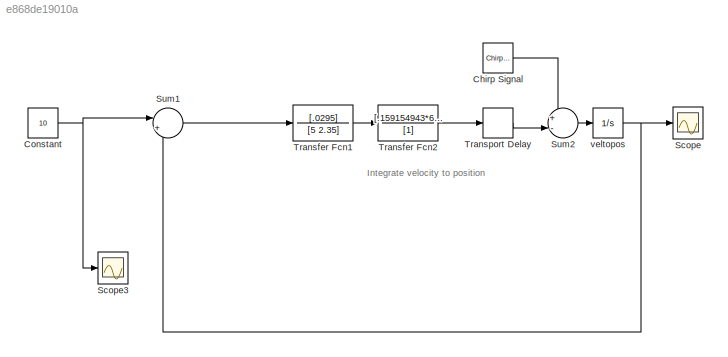
MODEL slx_e868de19010a
KIND model
BLOCK [Reference] Chirp Signal  REF=simulink/Sources/Chirp Signal
  Ports = [0, 1]
  SourceBlock = simulink/Sources/Chirp Signal
  SourceType = chirp
  T = 100
  VectorParams1D = on
  f1 = 0.1
  f2 = .8
BLOCK [Constant] Constant
  Value = 10
BLOCK [Scope] Scope
  Floating = off
  NumInputPorts = 1
  Ports = [1]
  SaveName = output
  SaveToWorkspace = on
  ShowLegends = off
BLOCK [Scope] Scope3
  Floating = off
  NumInputPorts = 1
  Ports = [1]
  SaveName = input1
  SaveToWorkspace = on
  ShowLegends = off
BLOCK [Sum] Sum1
  IconShape = round
  InputSameDT = off
  Inputs = |+-
  OutDataTypeStr = Inherit: Inherit via internal rule
  Ports = [2, 1]
  SaturateOnIntegerOverflow = off
BLOCK [Sum] Sum2
  IconShape = round
  InputSameDT = off
  Inputs = +-|
  OutDataTypeStr = Inherit: Inherit via internal rule
  Ports = [2, 1]
  SaturateOnIntegerOverflow = off
BLOCK [TransferFcn] Transfer Fcn1
  Denominator = [5 2.35]
  Numerator = [.0295]
BLOCK [TransferFcn] Transfer Fcn2
  Denominator = [1]
  Numerator = [.159154943*60]
BLOCK [TransportDelay] Transport Delay
  Ports = [1, 1]
BLOCK [Integrator] veltopos 
  Ports = [1, 1]
ANNOTATION (root): Integrate velocity to position
LINE Chirp Signal:1 -> Sum2:1
NET Constant:1 -> Scope3:1, Sum1:1
LINE Sum1:1 -> Transfer Fcn1:1
LINE Sum2:1 -> veltopos :1
LINE Transfer Fcn1:1 -> Transfer Fcn2:1
LINE Transfer Fcn2:1 -> Transport Delay:1
LINE Transport Delay:1 -> Sum2:2
NET veltopos :1 -> Scope:1, Sum1:2
note: NET lines group one-source signal fan-out (src -> all destinations, sorted); 1:1 wires keep LINE
